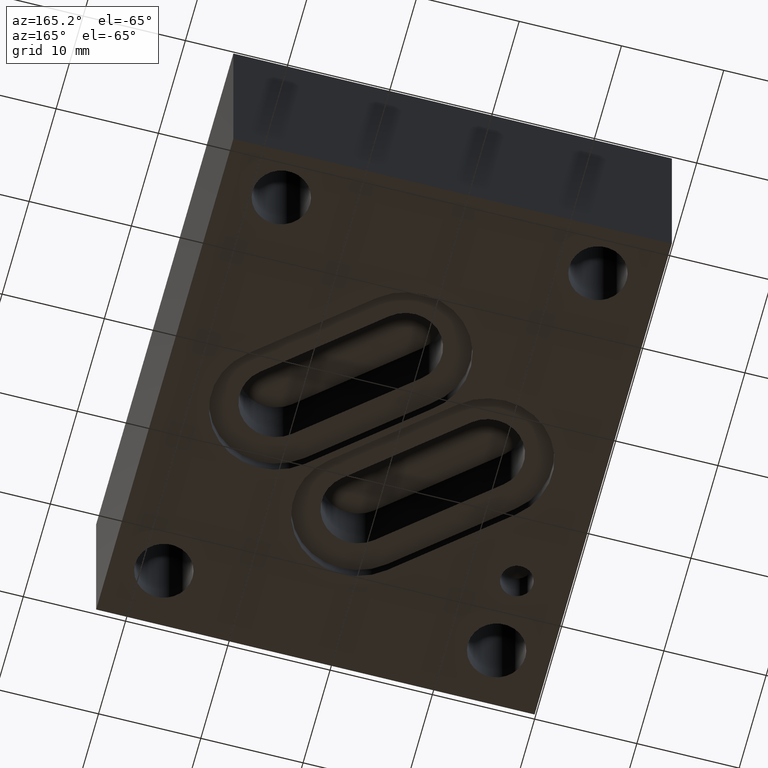
[diagram: clean part render]
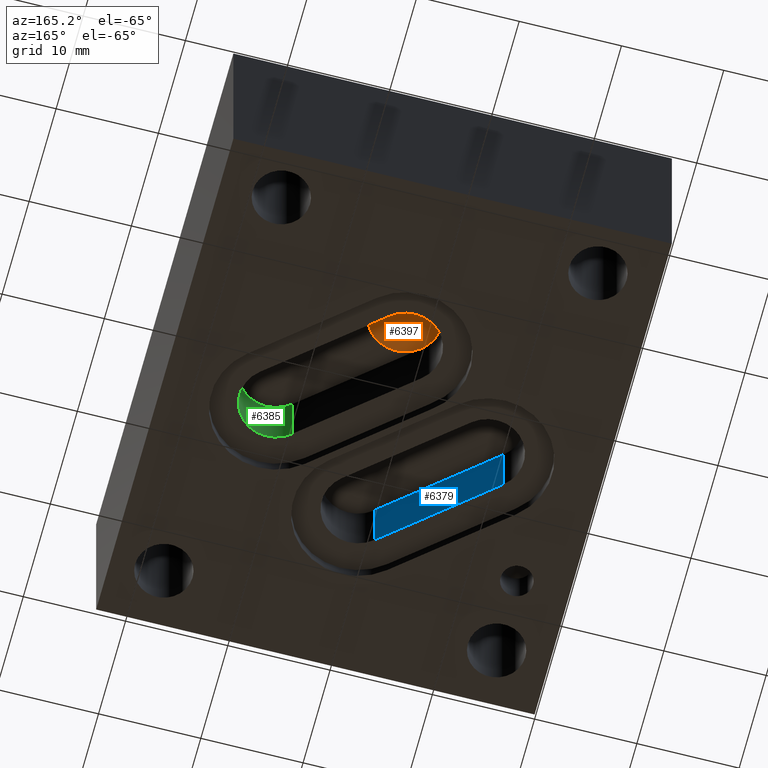
[diagram: same view with three faces highlighted in distinct colors, each labeled with its STEP entity id]
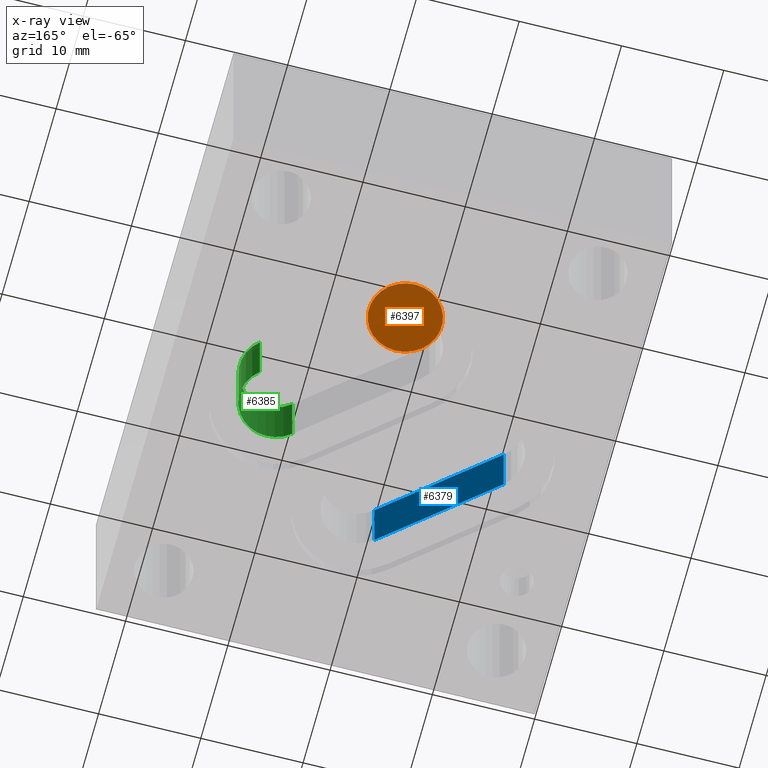
[diagram: x-ray of the same camera — body ghosted, the three highlighted faces saturated]
A machine part, auxiliary view with three faces highlighted in distinct colors.
The next image is the same camera in x-ray (body ghosted, the three faces saturated) — at least one of them is partly hidden behind the body in this view.
Their STEP definitions:

[orange] entity #6397 — the highlighted planar face has unit normal (0, 0, 1).
#18=CIRCLE('',#6644,0.1405);
#21=CIRCLE('',#6649,0.1405);
#526=FACE_OUTER_BOUND('',#897,.T.);
#897=EDGE_LOOP('',(#5766,#5767));
#3056=VERTEX_POINT('',#11263);
#3057=VERTEX_POINT('',#11267);
#3948=EDGE_CURVE('',#3057,#3056,#18,.T.);
#3956=EDGE_CURVE('',#3056,#3057,#21,.T.);
#5766=ORIENTED_EDGE('',*,*,#3948,.T.);
#5767=ORIENTED_EDGE('',*,*,#3956,.T.);
#6066=PLANE('',#6684);
#6397=ADVANCED_FACE('',(#526),#6066,.F.);
#6644=AXIS2_PLACEMENT_3D('',#11268,#7780,#7781);
#6649=AXIS2_PLACEMENT_3D('',#11282,#7795,#7796);
#6684=AXIS2_PLACEMENT_3D('',#11364,#7884,#7885);
#7780=DIRECTION('center_axis',(0.,0.,-1.));
#7781=DIRECTION('ref_axis',(1.,0.,0.));
#7795=DIRECTION('center_axis',(0.,0.,-1.));
#7796=DIRECTION('ref_axis',(1.,0.,0.));
#7884=DIRECTION('center_axis',(0.,0.,1.));
#7885=DIRECTION('ref_axis',(1.,0.,0.));
#11263=CARTESIAN_POINT('',(0.75356017825646,1.20443920728964,0.312882287401575));
#11267=CARTESIAN_POINT('',(0.93493982174354,1.41906079271036,0.312882287401575));
#11268=CARTESIAN_POINT('Origin',(0.84425,1.31175,0.312882287401575));
#11282=CARTESIAN_POINT('Origin',(0.84425,1.31175,0.312882287401575));
#11364=CARTESIAN_POINT('Origin',(0.9145,1.31175,0.312882287401575));

[blue] entity #6379 — the highlighted planar face has unit normal (-0.6459, -0.7634, 0).
#508=FACE_OUTER_BOUND('',#872,.T.);
#872=EDGE_LOOP('',(#5674,#5675,#5676,#5677,#5678));
#1554=LINE('',#11235,#2238);
#1556=LINE('',#11241,#2240);
#1557=LINE('',#11243,#2241);
#1558=LINE('',#11245,#2242);
#1559=LINE('',#11246,#2243);
#2238=VECTOR('',#7755,0.000117712598425157);
#2240=VECTOR('',#7761,0.5321683239352);
#2241=VECTOR('',#7762,0.260882287401575);
#2242=VECTOR('',#7763,0.5321683239352);
#2243=VECTOR('',#7764,0.261);
#3042=VERTEX_POINT('',#11231);
#3044=VERTEX_POINT('',#11234);
#3046=VERTEX_POINT('',#11240);
#3047=VERTEX_POINT('',#11242);
#3048=VERTEX_POINT('',#11244);
#3932=EDGE_CURVE('',#3042,#3044,#1554,.T.);
#3935=EDGE_CURVE('',#3044,#3046,#1556,.T.);
#3936=EDGE_CURVE('',#3047,#3042,#1557,.T.);
#3937=EDGE_CURVE('',#3048,#3047,#1558,.T.);
#3938=EDGE_CURVE('',#3048,#3046,#1559,.T.);
#5674=ORIENTED_EDGE('',*,*,#3935,.F.);
#5675=ORIENTED_EDGE('',*,*,#3932,.F.);
#5676=ORIENTED_EDGE('',*,*,#3936,.F.);
#5677=ORIENTED_EDGE('',*,*,#3937,.F.);
#5678=ORIENTED_EDGE('',*,*,#3938,.T.);
#6056=PLANE('',#6640);
#6379=ADVANCED_FACE('',(#508),#6056,.F.);
#6640=AXIS2_PLACEMENT_3D('',#11239,#7759,#7760);
#7755=DIRECTION('',(0.,0.,1.));
#7759=DIRECTION('center_axis',(-0.645942241466174,-0.763386285369115,0.));
#7760=DIRECTION('ref_axis',(0.,0.,1.));
#7761=DIRECTION('',(-0.763386285369115,0.645942241466174,0.));
#7762=DIRECTION('',(0.,0.,1.));
#7763=DIRECTION('',(0.763386285369115,-0.645942241466174,0.));
#7764=DIRECTION('',(0.,0.,1.));
#11231=CARTESIAN_POINT('',(0.753495115074003,0.516994226905639,0.312882287401575));
#11234=CARTESIAN_POINT('',(0.753495115074003,0.516994226905639,0.313));
#11235=CARTESIAN_POINT('',(0.753495115074003,0.516994226905639,0.312882287401575));
#11239=CARTESIAN_POINT('Origin',(0.753495115074003,0.516994226905639,0.052));
#11240=CARTESIAN_POINT('',(0.347245115074002,0.860744226905639,0.313));
#11241=CARTESIAN_POINT('',(0.753495115074003,0.516994226905639,0.313));
#11242=CARTESIAN_POINT('',(0.753495115074003,0.516994226905639,0.052));
#11243=CARTESIAN_POINT('',(0.753495115074003,0.516994226905639,0.052));
#11244=CARTESIAN_POINT('',(0.347245115074002,0.860744226905639,0.052));
#11245=CARTESIAN_POINT('',(0.347245115074003,0.860744226905639,0.052));
#11246=CARTESIAN_POINT('',(0.347245115074003,0.860744226905639,0.052));

[green] entity #6385 — the highlighted cylindrical surface (partial cylindrical patch) has radius 3.5687 mm, axis along (0, 0, -1).
#22=CIRCLE('',#6651,0.1405);
#23=CIRCLE('',#6652,0.1405);
#55=CYLINDRICAL_SURFACE('',#6650,0.1405);
#514=FACE_OUTER_BOUND('',#878,.T.);
#878=EDGE_LOOP('',(#5702,#5703,#5704,#5705));
#1565=LINE('',#11260,#2249);
#1573=LINE('',#11279,#2257);
#2249=VECTOR('',#7774,0.261);
#2257=VECTOR('',#7790,0.261);
#3052=VERTEX_POINT('',#11256);
#3054=VERTEX_POINT('',#11259);
#3059=VERTEX_POINT('',#11273);
#3061=VERTEX_POINT('',#11277);
#3944=EDGE_CURVE('',#3054,#3052,#1565,.T.);
#3954=EDGE_CURVE('',#3061,#3059,#1573,.T.);
#3957=EDGE_CURVE('',#3059,#3052,#22,.T.);
#3958=EDGE_CURVE('',#3054,#3061,#23,.T.);
#5702=ORIENTED_EDGE('',*,*,#3944,.T.);
#5703=ORIENTED_EDGE('',*,*,#3957,.F.);
#5704=ORIENTED_EDGE('',*,*,#3954,.F.);
#5705=ORIENTED_EDGE('',*,*,#3958,.F.);
#6385=ADVANCED_FACE('',(#514),#55,.F.);
#6650=AXIS2_PLACEMENT_3D('',#11283,#7797,#7798);
#6651=AXIS2_PLACEMENT_3D('',#11284,#7799,#7800);
#6652=AXIS2_PLACEMENT_3D('',#11285,#7801,#7802);
#7774=DIRECTION('',(0.,0.,1.));
#7790=DIRECTION('',(0.,0.,1.));
#7797=DIRECTION('center_axis',(0.,0.,-1.));
#7798=DIRECTION('ref_axis',(1.,0.,0.));
#7799=DIRECTION('center_axis',(0.,0.,-1.));
#7800=DIRECTION('ref_axis',(1.,0.,0.));
#7801=DIRECTION('center_axis',(0.,0.,1.));
#7802=DIRECTION('ref_axis',(1.,0.,0.));
#11256=CARTESIAN_POINT('',(1.16031017825646,0.860689207289644,0.313));
#11259=CARTESIAN_POINT('',(1.16031017825646,0.860689207289644,0.052));
#11260=CARTESIAN_POINT('',(1.16031017825646,0.860689207289644,0.052));
#11273=CARTESIAN_POINT('',(1.34168982174354,1.07531079271036,0.313));
#11277=CARTESIAN_POINT('',(1.34168982174354,1.07531079271036,0.052));
#11279=CARTESIAN_POINT('',(1.34168982174354,1.07531079271036,0.052));
#11283=CARTESIAN_POINT('Origin',(1.251,0.968,0.1565));
#11284=CARTESIAN_POINT('Origin',(1.251,0.968,0.313));
#11285=CARTESIAN_POINT('Origin',(1.251,0.968,0.052));